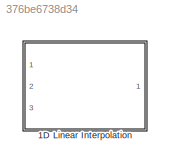
MODEL slx_376be6738d34
KIND library
CONFIG AbsTol = auto
CONFIG FixedStep = auto
CONFIG MaxStep = auto
CONFIG MinStep = auto
CONFIG RelTol = 1e-3
CONFIG SampleTimeConstraint = Unconstrained
CONFIG Solver = ode45
CONFIG SolverMode = Auto
CONFIG SolverName = ode45
CONFIG StartTime = 0.0
CONFIG StopTime = 10.0
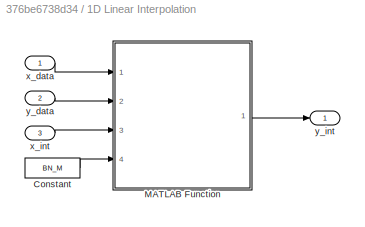
BLOCK [SubSystem] 1D Linear Interpolation
  Ports = [3, 1]
  RequestExecContextInheritance = off
BLOCK [Constant] 1D Linear Interpolation/Constant
  Value = BN_M
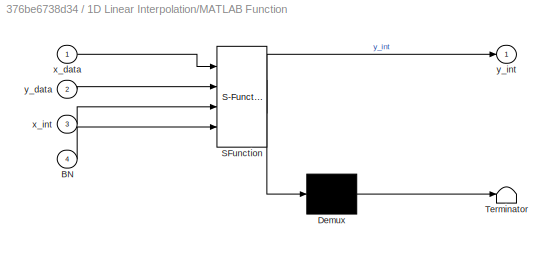
BLOCK [SubSystem] 1D Linear Interpolation/MATLAB Function
  ErrorFcn = Stateflow.Translate.translate
  PermitHierarchicalResolution = ExplicitOnly
  Ports = [4, 1]
  RequestExecContextInheritance = off
  SFBlockType = MATLAB Function
  TreatAsAtomicUnit = on
BLOCK [Demux] 1D Linear Interpolation/MATLAB Function/ Demux 
  Outputs = 1
  Ports = [1, 1]
BLOCK [S-Function] 1D Linear Interpolation/MATLAB Function/ SFunction 
  EnableBusSupport = on
  FunctionName = sf_sfun
  PortCounts = [4 2]
  Ports = [4, 2]
  Tag = Stateflow S-Function lib_GenTools_1DlinearInterp 2
BLOCK [Terminator] 1D Linear Interpolation/MATLAB Function/ Terminator 
BLOCK [Inport] 1D Linear Interpolation/MATLAB Function/BN
  IconDisplay = Port number
  Port = 4
BLOCK [Inport] 1D Linear Interpolation/MATLAB Function/x_data
  IconDisplay = Port number
BLOCK [Inport] 1D Linear Interpolation/MATLAB Function/x_int
  IconDisplay = Port number
  Port = 3
BLOCK [Inport] 1D Linear Interpolation/MATLAB Function/y_data
  IconDisplay = Port number
  Port = 2
BLOCK [Outport] 1D Linear Interpolation/MATLAB Function/y_int
  IconDisplay = Port number
BLOCK [Inport] 1D Linear Interpolation/x_data
  IconDisplay = Port number
BLOCK [Inport] 1D Linear Interpolation/x_int
  IconDisplay = Port number
  Port = 3
BLOCK [Inport] 1D Linear Interpolation/y_data
  IconDisplay = Port number
  Port = 2
BLOCK [Outport] 1D Linear Interpolation/y_int
  IconDisplay = Port number
LINE 1D Linear Interpolation/Constant:1 -> 1D Linear Interpolation/MATLAB Function:4
LINE 1D Linear Interpolation/MATLAB Function:1 -> 1D Linear Interpolation/y_int:1
LINE 1D Linear Interpolation/x_data:1 -> 1D Linear Interpolation/MATLAB Function:1
LINE 1D Linear Interpolation/x_int:1 -> 1D Linear Interpolation/MATLAB Function:3
LINE 1D Linear Interpolation/y_data:1 -> 1D Linear Interpolation/MATLAB Function:2
CHART 1D Linear Interpolation/MATLAB Function states=1 transitions=1
  STATE_LABEL 'eML_blk_kernel()'
  STATE_LABEL "SCRIPT:\nfunction y_int = interp1D(x_data,y_data,x_int,BN)\n%#codegen\n\n[n1,m1] = size(x_data);\n[n2,m2] = size(y_data);\n[n3,m3] = size(x_int);\ndiff_xdata = diff(x_data);\n\nif min([n1,m1]) ~= 1\n    y_int = ones(n3,m3);\n    fprintf('Warning in %s: x_data must be a 1-D array. y_int has been set to an array of ones the size of x_int as a default.\\n',char(BN));\nelseif min([n2,m2]) ~= 1\n    y_int = ones(n3,...<+1351ch>"
